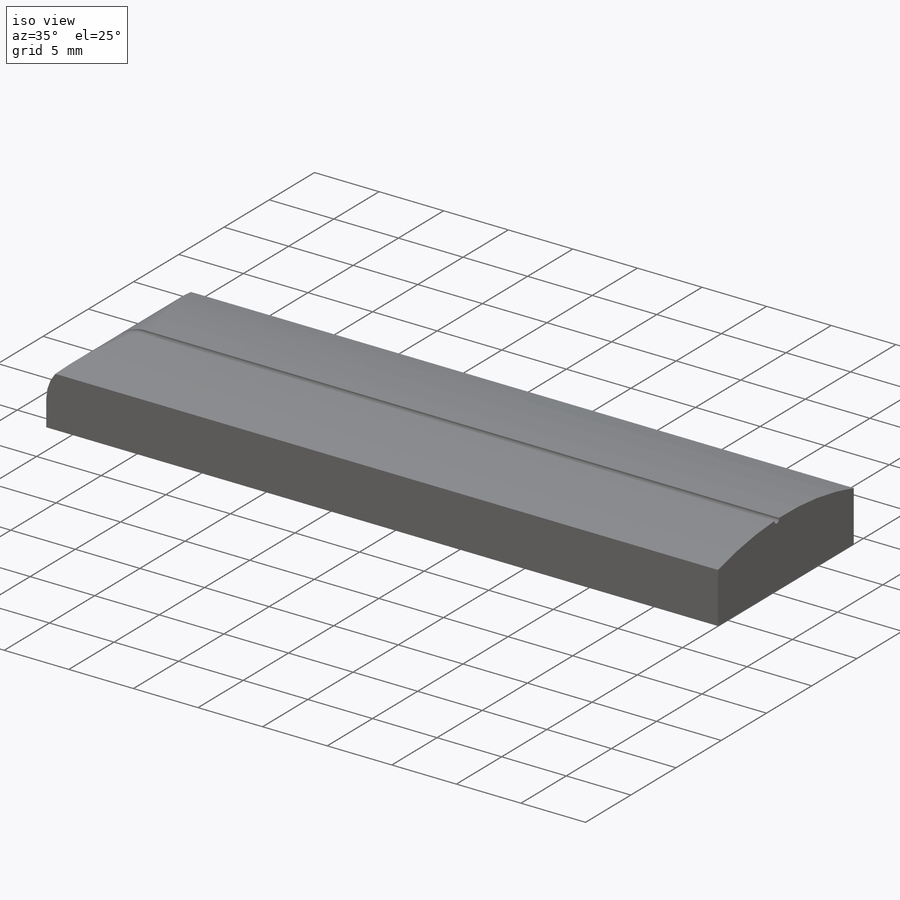
[diagram: iso view]
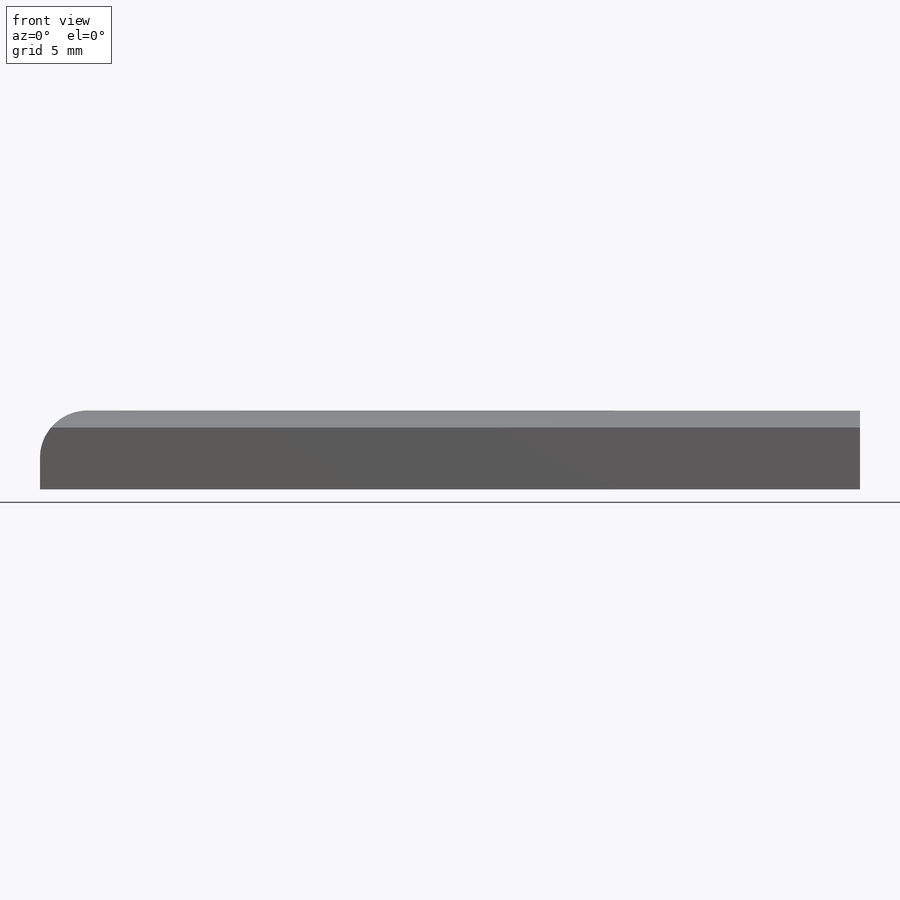
[diagram: front view]
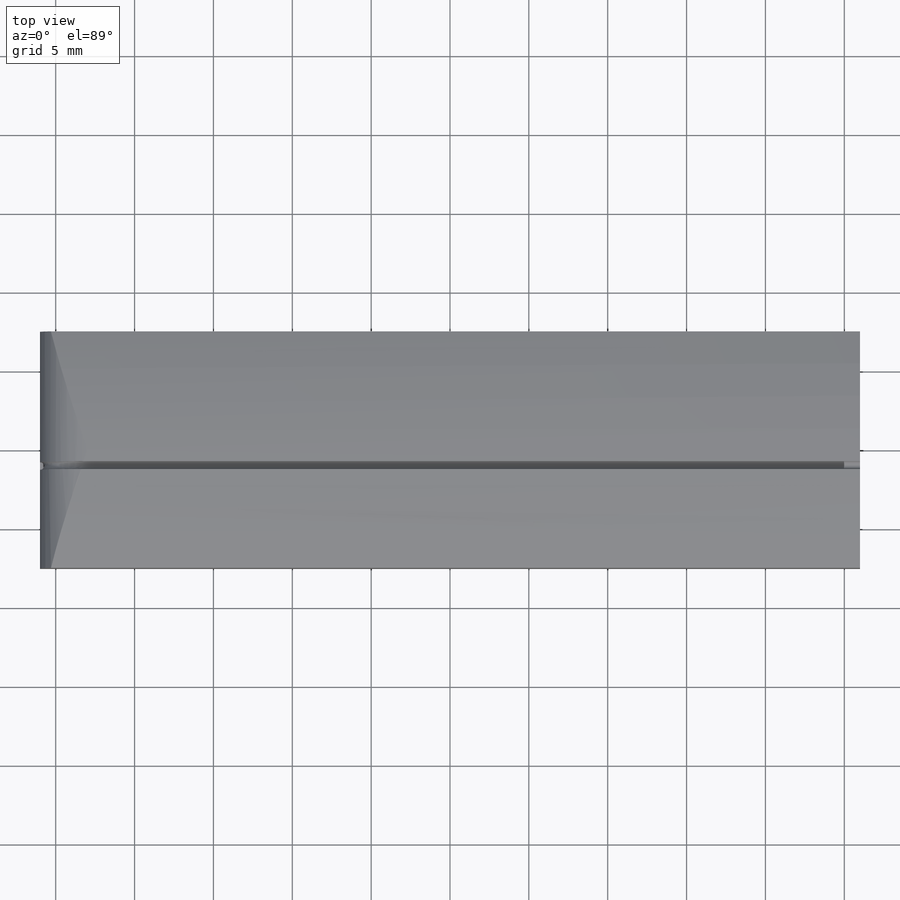
[diagram: top view]
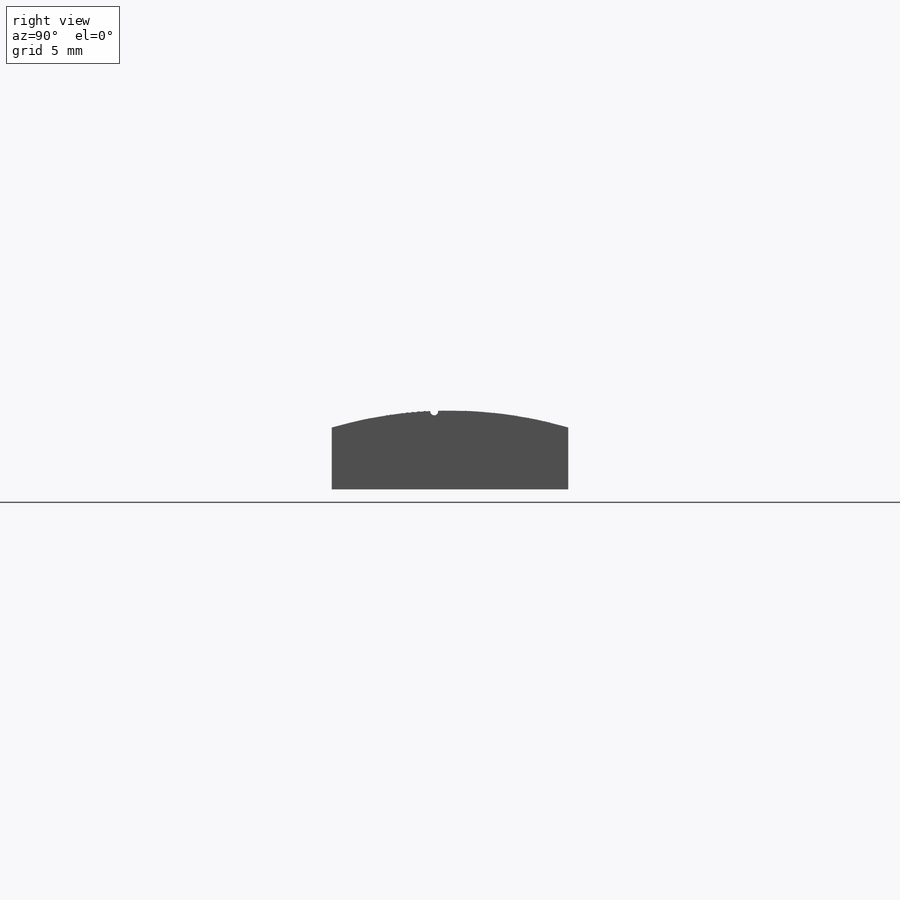
[diagram: right view]
SOLIDWORKS PART (.sldprt)
format: sldprt  version: not decoded by parser v0  size: 208,896 bytes
history: native  units: mm
features: sketch x4, plane x4, material x1, extrude x1, fillet x1, cut_extrude x1, sweep x1 (+12 scaffold rows collapsed)
feature tree (25):
  scaffold x12  (default folders/planes/origin — collapsed)
  material  "Material <not specified>"
  sketch  "Sketch1"  dims[c1.D1=~34.963515mm c1.D2=~79.495993mm c2.D1=15.0mm c2.D2=52.0mm]
  extrude  "Boss-Extrude1"  Depth=5mm
  sketch  "Sketch2"  dims[D1=~26.726914mm]
  fillet  "Fillet1"  Radius=3mm
  cut_extrude  "Cut-Extrude2"  [1 undecoded]
  plane  "Plane4"  Offset=1mm
  plane  "Plane5"  Offset=2mm
  plane  "Plane6"  Offset=3mm
  plane  "Plane7"  Offset=4mm
  sketch  "3DSketch2"  dims[c1.D1=~2.682164mm c2.D1=~49.334568mm c3.D1=~0.329348mm c4.D1=~1.747083mm c5.D1=~2431.863777mm]
  sketch  "Sketch4"  dims[D1=0.5mm]
  sweep  "Cut-Sweep1"
decode coverage: 6 of 8 modeling features carry decoded parameters
note: ~ marks probable driven/reference dimensions
note: 1 parameter value undecoded
note: suppression state not decoded; provenance and decode notes live in map.json
